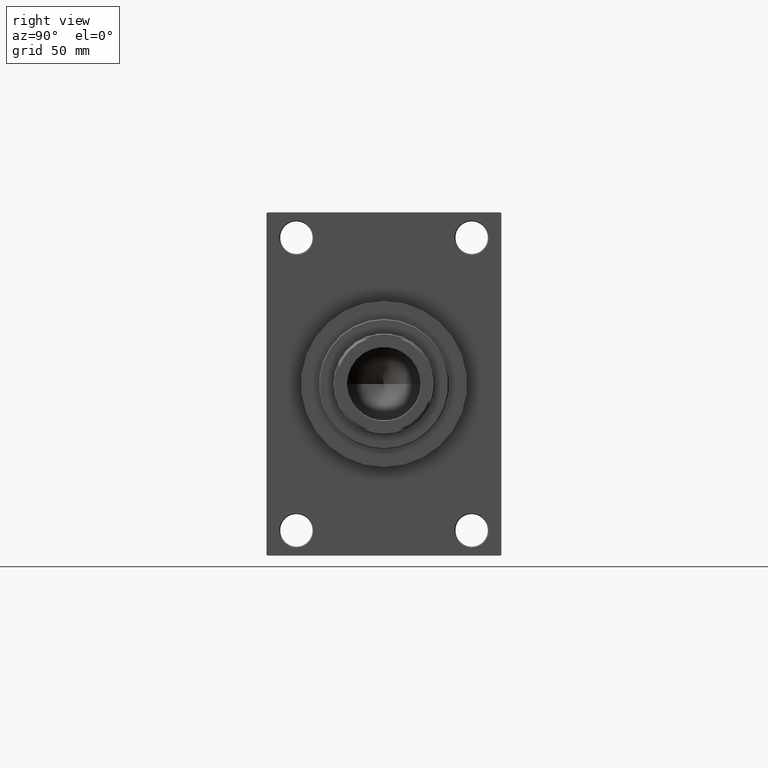
[diagram: clean part render]
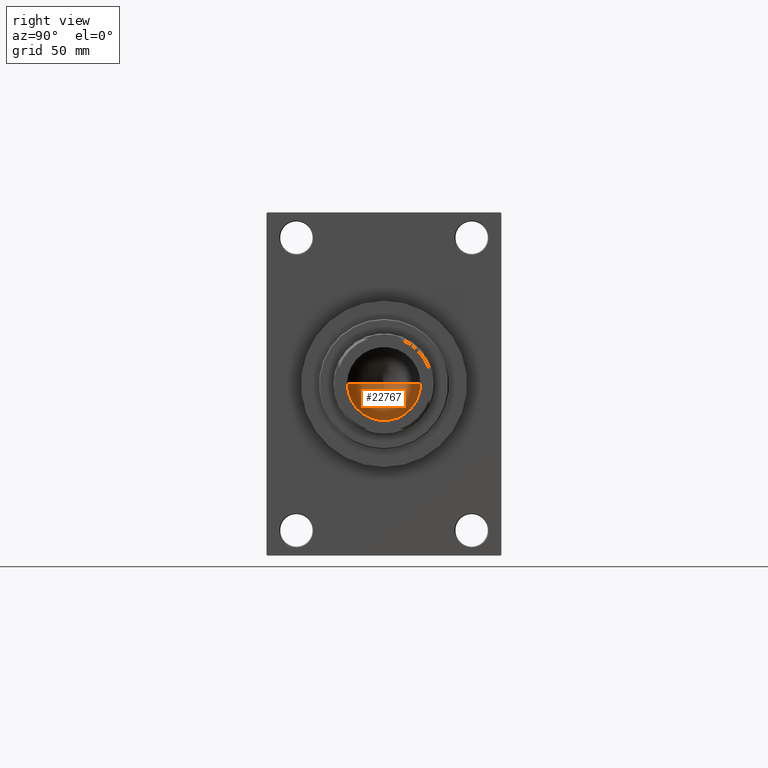
[diagram: same view with one face highlighted and labeled with its STEP entity id]
A machine part, right view. The second image highlights one B-rep face of the part: STEP entity #22767.
In plain terms, the highlighted conical surface has half-angle 59 deg.
Its self-contained STEP definition (entity closure, byte-faithful):
#1789 = VECTOR ( 'NONE', #34783, 1000.000000000000000 ) ;
#4735 = VERTEX_POINT ( 'NONE', #27337 ) ;
#10319 = CARTESIAN_POINT ( 'NONE',  ( 20.24999999999998934, 0.000000000000000000, 207.0000000000000284 ) ) ;
#13146 = FACE_OUTER_BOUND ( 'NONE', #13550, .T. ) ;
#13550 = EDGE_LOOP ( 'NONE', ( #26964, #39018, #35884 ) ) ;
#13923 = CARTESIAN_POINT ( 'NONE',  ( 0.000000000000000000, 0.000000000000000000, 207.0000000000000284 ) ) ;
#13929 = DIRECTION ( 'NONE',  ( 0.8571673007021112234, 0.000000000000000000, 0.5150380749100560429 ) ) ;
#15493 = LINE ( 'NONE', #30219, #1789 ) ;
#17150 = CONICAL_SURFACE ( 'NONE', #34891, 20.24999999999998934, 1.029744258676652313 ) ;
#18307 = CIRCLE ( 'NONE', #23730, 20.24999999999998934 ) ;
#22767 = ADVANCED_FACE ( 'NONE', ( #13146 ), #17150, .F. ) ;
#23730 = AXIS2_PLACEMENT_3D ( 'NONE', #13923, #28900, #35660 ) ;
#24949 = EDGE_CURVE ( 'NONE', #4735, #28887, #15493, .T. ) ;
#26964 = ORIENTED_EDGE ( 'NONE', *, *, #24949, .F. ) ;
#27337 = CARTESIAN_POINT ( 'NONE',  ( -1.584115414415908206E-14, 0.000000000000000000, 194.8325724646918786 ) ) ;
#27870 = CARTESIAN_POINT ( 'NONE',  ( 0.000000000000000000, 0.000000000000000000, 207.0000000000000284 ) ) ;
#28162 = CARTESIAN_POINT ( 'NONE',  ( -20.24999999999998934, 2.479909768273389117E-15, 207.0000000000000284 ) ) ;
#28657 = LINE ( 'NONE', #10319, #38247 ) ;
#28887 = VERTEX_POINT ( 'NONE', #28162 ) ;
#28900 = DIRECTION ( 'NONE',  ( -0.000000000000000000, -0.000000000000000000, 1.000000000000000000 ) ) ;
#30219 = CARTESIAN_POINT ( 'NONE',  ( -20.24999999999998934, 2.479909768273389117E-15, 207.0000000000000284 ) ) ;
#30229 = CARTESIAN_POINT ( 'NONE',  ( 20.24999999999998934, 0.000000000000000000, 207.0000000000000284 ) ) ;
#30927 = EDGE_CURVE ( 'NONE', #4735, #32603, #28657, .T. ) ;
#32603 = VERTEX_POINT ( 'NONE', #30229 ) ;
#34414 = DIRECTION ( 'NONE',  ( 1.000000000000000000, 0.000000000000000000, 0.000000000000000000 ) ) ;
#34783 = DIRECTION ( 'NONE',  ( -0.8571673007021112234, 1.049727191138617340E-16, 0.5150380749100560429 ) ) ;
#34891 = AXIS2_PLACEMENT_3D ( 'NONE', #27870, #41906, #34414 ) ;
#35516 = EDGE_CURVE ( 'NONE', #32603, #28887, #18307, .T. ) ;
#35660 = DIRECTION ( 'NONE',  ( 1.000000000000000000, 0.000000000000000000, 0.000000000000000000 ) ) ;
#35884 = ORIENTED_EDGE ( 'NONE', *, *, #35516, .T. ) ;
#38247 = VECTOR ( 'NONE', #13929, 1000.000000000000000 ) ;
#39018 = ORIENTED_EDGE ( 'NONE', *, *, #30927, .T. ) ;
#41906 = DIRECTION ( 'NONE',  ( -0.000000000000000000, -0.000000000000000000, 1.000000000000000000 ) ) ;